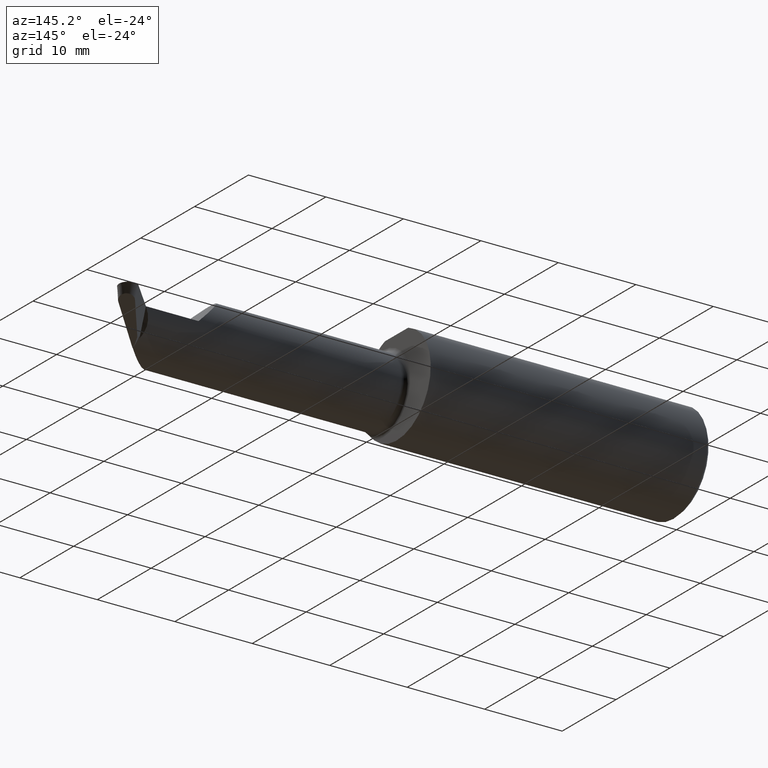
[diagram: clean part render]
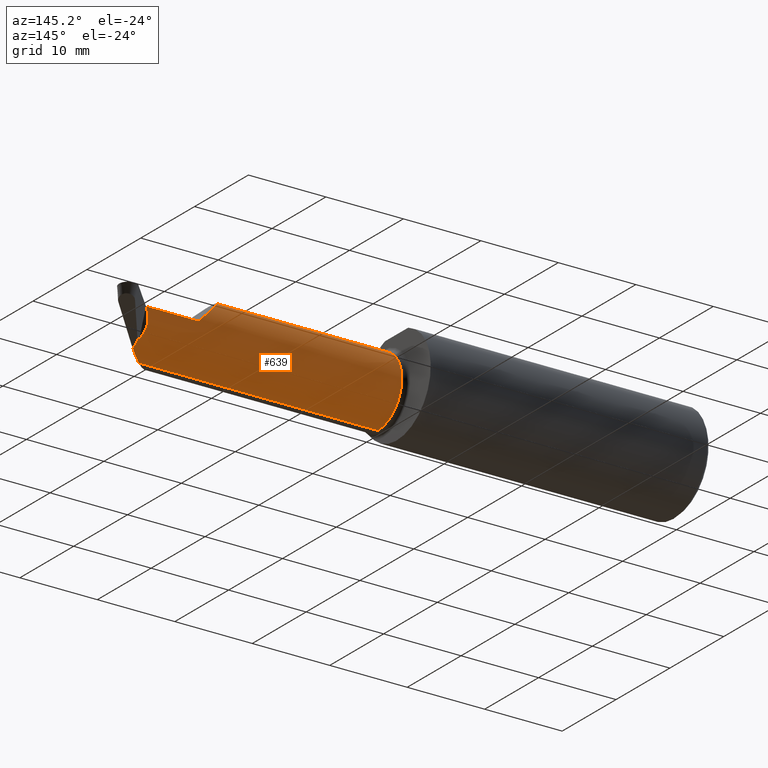
[diagram: same view with one face highlighted and labeled with its STEP entity id]
A machine part, auxiliary view. The second image highlights one B-rep face of the part: STEP entity #639.
In plain terms, the highlighted cylindrical surface (partial cylindrical patch) has radius 4.4196 mm, axis along (-1, -0, -0).
Its self-contained STEP definition (entity closure, byte-faithful):
#24 = CARTESIAN_POINT ( 'NONE',  ( 2.738296579641648076, 0.02821845109425510922, -0.1183330138671367104 ) ) ;
#54 = ORIENTED_EDGE ( 'NONE', *, *, #671, .F. ) ;
#55 = CARTESIAN_POINT ( 'NONE',  ( 2.747209855509363585, -0.02183442268399109210, -0.1555299639813814694 ) ) ;
#59 = CARTESIAN_POINT ( 'NONE',  ( 2.378073159852920337, 0.07414999999999936919, 0.1019268401470810187 ) ) ;
#60 = CARTESIAN_POINT ( 'NONE',  ( 2.691783994665847057, -0.07263796445558691472, -0.1739999999999993219 ) ) ;
#65 = LINE ( 'NONE', #324, #593 ) ;
#69 = B_SPLINE_CURVE_WITH_KNOTS ( 'NONE', 3,
 ( #699, #330, #200, #656, #797, #326, #91, #344, #80, #339, #395, #411, #24, #335 ),
 .UNSPECIFIED., .F., .F.,
 ( 4, 2, 2, 2, 2, 2, 4 ),
 ( 2.751842732678591713E-17, 0.0009210645519938650888, 0.001381596827990784352, 0.001842129103987703506, 0.002302661379984622444, 0.002763193655981541815, 0.003684258207975379257 ),
 .UNSPECIFIED. ) ;
#70 = CARTESIAN_POINT ( 'NONE',  ( 1.446999999999999842, -0.09985000000000000819, 0.1739999999999987390 ) ) ;
#80 = CARTESIAN_POINT ( 'NONE',  ( 2.729262707662182486, 0.05521386511994685886, -0.07917076052382547580 ) ) ;
#86 = AXIS2_PLACEMENT_3D ( 'NONE', #117, #365, #819 ) ;
#91 = CARTESIAN_POINT ( 'NONE',  ( 2.729532060954607875, 0.06263298279816702230, -0.06254356323277124319 ) ) ;
#94 = ORIENTED_EDGE ( 'NONE', *, *, #377, .T. ) ;
#105 = EDGE_CURVE ( 'NONE', #367, #313, #765, .T. ) ;
#106 = ORIENTED_EDGE ( 'NONE', *, *, #827, .T. ) ;
#117 = CARTESIAN_POINT ( 'NONE',  ( 2.747209855509363585, -0.09985000000000000819, 0.000000000000000000 ) ) ;
#124 = VERTEX_POINT ( 'NONE', #573 ) ;
#134 = CARTESIAN_POINT ( 'NONE',  ( 2.720501376327327581, -0.04615791066147757749, -0.1677308988258701672 ) ) ;
#171 = CARTESIAN_POINT ( 'NONE',  ( 2.480000000000000426, 0.07414999999999932756, -5.549066237130534971E-17 ) ) ;
#180 = EDGE_LOOP ( 'NONE', ( #182, #435, #632, #54, #611, #94, #106, #559, #242 ) ) ;
#182 = ORIENTED_EDGE ( 'NONE', *, *, #793, .F. ) ;
#197 = CARTESIAN_POINT ( 'NONE',  ( 1.446999999999999842, -0.09985000000000000819, 0.000000000000000000 ) ) ;
#199 = CARTESIAN_POINT ( 'NONE',  ( 2.662602659211939837, -0.09984999999999999432, -0.1739999999999993496 ) ) ;
#200 = CARTESIAN_POINT ( 'NONE',  ( 2.737784481426325023, 0.07310948323515023550, -0.02234505378485568058 ) ) ;
#204 = LINE ( 'NONE', #342, #689 ) ;
#232 = DIRECTION ( 'NONE',  ( -1.000000000000000000, -0.000000000000000000, -0.000000000000000000 ) ) ;
#242 = ORIENTED_EDGE ( 'NONE', *, *, #712, .T. ) ;
#245 = DIRECTION ( 'NONE',  ( 0.000000000000000000, 0.000000000000000000, 1.000000000000000000 ) ) ;
#278 = CARTESIAN_POINT ( 'NONE',  ( 2.745888439377188739, 0.02516030885773554160, -0.1210843971761494942 ) ) ;
#295 = VERTEX_POINT ( 'NONE', #512 ) ;
#298 = VECTOR ( 'NONE', #542, 39.37007874015748143 ) ;
#307 = VERTEX_POINT ( 'NONE', #55 ) ;
#313 = VERTEX_POINT ( 'NONE', #315 ) ;
#315 = CARTESIAN_POINT ( 'NONE',  ( 1.446999999999999842, -0.09984999999999999432, -0.1739999999999987390 ) ) ;
#316 = EDGE_CURVE ( 'NONE', #295, #585, #669, .T. ) ;
#319 = CARTESIAN_POINT ( 'NONE',  ( 2.480000000000000426, 0.07414999999999932756, -5.549066237130534971E-17 ) ) ;
#320 = CARTESIAN_POINT ( 'NONE',  ( 2.747209855509363585, -0.02183442268399109210, -0.1555299639813814694 ) ) ;
#324 = CARTESIAN_POINT ( 'NONE',  ( 1.421999999999999931, -0.09984999999999999432, -0.1739999999999993496 ) ) ;
#325 =( BOUNDED_CURVE ( )  B_SPLINE_CURVE ( 3, ( #398, #658, #278, #467 ),
 .UNSPECIFIED., .F., .T. ) 
 B_SPLINE_CURVE_WITH_KNOTS ( ( 4, 4 ),
 ( 2.705056901956456983, 2.767232025981801513 ),
 .UNSPECIFIED. ) 
 CURVE ( )  GEOMETRIC_REPRESENTATION_ITEM ( )  RATIONAL_B_SPLINE_CURVE ( ( 1.000000000000000000, 0.9996778804396316831, 0.9996778804396316831, 1.000000000000000000 ) ) 
 REPRESENTATION_ITEM ( '' )  );
#326 = CARTESIAN_POINT ( 'NONE',  ( 2.730090487902291585, 0.06468878021623208907, -0.05690967836276651648 ) ) ;
#330 = CARTESIAN_POINT ( 'NONE',  ( 2.742027741118144846, 0.07414999999999941083, -0.01106816904816652729 ) ) ;
#335 = CARTESIAN_POINT ( 'NONE',  ( 2.742935276533842170, 0.02000971208805564158, -0.1261334587576533328 ) ) ;
#337 = CIRCLE ( 'NONE', #86, 0.1739999999999999880 ) ;
#339 = CARTESIAN_POINT ( 'NONE',  ( 2.730269418181519026, 0.04932269850192620014, -0.08977927160270024465 ) ) ;
#342 = CARTESIAN_POINT ( 'NONE',  ( 1.421999999999999931, 0.07414999999999931368, -5.549066237130534971E-17 ) ) ;
#344 = CARTESIAN_POINT ( 'NONE',  ( 2.729115166841886264, 0.05790952544215695330, -0.07365018080837626435 ) ) ;
#359 = CARTESIAN_POINT ( 'NONE',  ( 1.421999999999999931, -0.09985000000000000819, 0.000000000000000000 ) ) ;
#365 = DIRECTION ( 'NONE',  ( -1.000000000000000000, -0.000000000000000000, -0.000000000000000000 ) ) ;
#367 = VERTEX_POINT ( 'NONE', #70 ) ;
#377 = EDGE_CURVE ( 'NONE', #585, #718, #204, .T. ) ;
#380 = CARTESIAN_POINT ( 'NONE',  ( 2.306000000000003602, -0.09985000000000000819, 0.1739999999999993496 ) ) ;
#382 = VERTEX_POINT ( 'NONE', #199 ) ;
#395 = CARTESIAN_POINT ( 'NONE',  ( 2.731118852781456052, 0.04614295590628457455, -0.09485372060500910085 ) ) ;
#398 = CARTESIAN_POINT ( 'NONE',  ( 2.742935276533842170, 0.02000971208805564158, -0.1261334587576533328 ) ) ;
#400 = AXIS2_PLACEMENT_3D ( 'NONE', #197, #594, #452 ) ;
#404 = EDGE_CURVE ( 'NONE', #124, #564, #325, .T. ) ;
#411 = CARTESIAN_POINT ( 'NONE',  ( 2.734630657006113186, 0.03594711890398687854, -0.1094341283368459594 ) ) ;
#435 = ORIENTED_EDGE ( 'NONE', *, *, #821, .T. ) ;
#446 = CARTESIAN_POINT ( 'NONE',  ( 2.662602659211939837, -0.09984999999999999432, -0.1739999999999993496 ) ) ;
#452 = DIRECTION ( 'NONE',  ( 0.000000000000000000, 0.000000000000000000, 1.000000000000000000 ) ) ;
#467 = CARTESIAN_POINT ( 'NONE',  ( 2.747209855509363585, 0.02761542476122515188, -0.1184422453791063451 ) ) ;
#480 = FACE_OUTER_BOUND ( 'NONE', #180, .T. ) ;
#483 = CYLINDRICAL_SURFACE ( 'NONE', #550, 0.1739999999999993496 ) ;
#512 = CARTESIAN_POINT ( 'NONE',  ( 2.306000000000003602, -0.09985000000000000819, 0.1739999999999993496 ) ) ;
#531 = DIRECTION ( 'NONE',  ( 1.000000000000000000, 0.000000000000000000, 0.000000000000000000 ) ) ;
#542 = DIRECTION ( 'NONE',  ( -1.000000000000000000, -0.000000000000000000, -0.000000000000000000 ) ) ;
#550 = AXIS2_PLACEMENT_3D ( 'NONE', #359, #232, #245 ) ;
#552 =( BOUNDED_CURVE ( )  B_SPLINE_CURVE ( 3, ( #446, #60, #134, #320 ),
 .UNSPECIFIED., .F., .T. ) 
 B_SPLINE_CURVE_WITH_KNOTS ( ( 4, 4 ),
 ( 1.523084436873744618, 1.988020202971616746 ),
 .UNSPECIFIED. ) 
 CURVE ( )  GEOMETRIC_REPRESENTATION_ITEM ( )  RATIONAL_B_SPLINE_CURVE ( ( 1.000000000000000000, 0.9820672057869661575, 0.9820672057869661575, 1.000000000000000000 ) ) 
 REPRESENTATION_ITEM ( '' )  );
#559 = ORIENTED_EDGE ( 'NONE', *, *, #404, .T. ) ;
#564 = VERTEX_POINT ( 'NONE', #606 ) ;
#573 = CARTESIAN_POINT ( 'NONE',  ( 2.742935276533842170, 0.02000971208805564158, -0.1261334587576533328 ) ) ;
#585 = VERTEX_POINT ( 'NONE', #171 ) ;
#593 = VECTOR ( 'NONE', #777, 39.37007874015748143 ) ;
#594 = DIRECTION ( 'NONE',  ( -1.000000000000000000, -0.000000000000000000, -0.000000000000000000 ) ) ;
#606 = CARTESIAN_POINT ( 'NONE',  ( 2.747209855509363585, 0.02761542476122515188, -0.1184422453791063451 ) ) ;
#611 = ORIENTED_EDGE ( 'NONE', *, *, #316, .T. ) ;
#632 = ORIENTED_EDGE ( 'NONE', *, *, #105, .F. ) ;
#639 = ADVANCED_FACE ( 'NONE', ( #480 ), #483, .T. ) ;
#641 = CARTESIAN_POINT ( 'NONE',  ( 2.306000000000003602, 0.002076840147081085095, 0.1739999999999993496 ) ) ;
#656 = CARTESIAN_POINT ( 'NONE',  ( 2.733139793779889803, 0.06967497622605478558, -0.03964660771062207545 ) ) ;
#658 = CARTESIAN_POINT ( 'NONE',  ( 2.744463120595625583, 0.02262425438726394650, -0.1236489610651934357 ) ) ;
#669 =( BOUNDED_CURVE ( )  B_SPLINE_CURVE ( 3, ( #380, #641, #59, #319 ),
 .UNSPECIFIED., .F., .F. ) 
 B_SPLINE_CURVE_WITH_KNOTS ( ( 4, 4 ),
 ( 0.000000000000000000, 1.570796326794896780 ),
 .UNSPECIFIED. ) 
 CURVE ( )  GEOMETRIC_REPRESENTATION_ITEM ( )  RATIONAL_B_SPLINE_CURVE ( ( 1.000000000000000000, 0.8047378541243649375, 0.8047378541243649375, 1.000000000000000000 ) ) 
 REPRESENTATION_ITEM ( '' )  );
#671 = EDGE_CURVE ( 'NONE', #295, #367, #675, .T. ) ;
#675 = LINE ( 'NONE', #741, #298 ) ;
#689 = VECTOR ( 'NONE', #531, 39.37007874015748143 ) ;
#699 = CARTESIAN_POINT ( 'NONE',  ( 2.747209855509363141, 0.07415000000000039615, 1.912293595564984056E-15 ) ) ;
#712 = EDGE_CURVE ( 'NONE', #564, #307, #337, .T. ) ;
#718 = VERTEX_POINT ( 'NONE', #748 ) ;
#741 = CARTESIAN_POINT ( 'NONE',  ( 1.421999999999999931, -0.09985000000000000819, 0.1739999999999993496 ) ) ;
#748 = CARTESIAN_POINT ( 'NONE',  ( 2.747209855509363141, 0.07415000000000039615, 1.912293595564984056E-15 ) ) ;
#765 = CIRCLE ( 'NONE', #400, 0.1739999999999987390 ) ;
#777 = DIRECTION ( 'NONE',  ( -1.000000000000000000, -0.000000000000000000, -0.000000000000000000 ) ) ;
#793 = EDGE_CURVE ( 'NONE', #382, #307, #552, .T. ) ;
#797 = CARTESIAN_POINT ( 'NONE',  ( 2.731886890911535470, 0.06820596704990194992, -0.04548531219329300657 ) ) ;
#819 = DIRECTION ( 'NONE',  ( 0.000000000000000000, 0.000000000000000000, 1.000000000000000000 ) ) ;
#821 = EDGE_CURVE ( 'NONE', #382, #313, #65, .T. ) ;
#827 = EDGE_CURVE ( 'NONE', #718, #124, #69, .T. ) ;